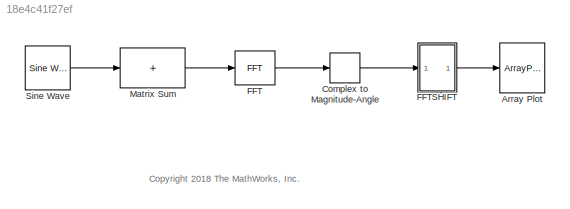
MODEL slx_18e4c41f27ef
KIND model
CONFIG AbsTol = auto
CONFIG EnableMultiTasking = on
CONFIG FixedStep = auto
CONFIG MaxStep = auto
CONFIG MinStep = auto
CONFIG PostLoadFcn = set_param(gcs,'SimulationCommand','Update')
CONFIG RelTol = 1e-3
CONFIG SampleTimeConstraint = Unconstrained
CONFIG SolverName = FixedStepDiscrete
CONFIG StartTime = 0.0
CONFIG StopTime = 20
BLOCK [ArrayPlot] Array Plot
  AxesScaling = Manual
  CustomXData = [-500+500/128:1000/128:500]
  DefaultConfigurationName = dsp.scopes.ArrayPlotBlockSpecification
  GraphicalSettings = {'Peaks':{'Enabled':'true','NumPeaks':'4','MinHeight':'-Infinity','MinDistance':'1','Threshold':'0'},'Style':{'AxesColor':[0,0,0],'LabelsColor':[0.686274509803922,0.686274509803922,0.686274509803922],'Marker':['none']}}
  PlotType = Line
  Ports = [1]
  SampleIncrement = 1000/128
  ScopeSpecificationString = dsp.scopes.ArrayPlotBlockSpecification('CurrentConfiguration', extmgr.ConfigurationSet(extmgr.Configuration('Core','General UI',true),extmgr.Configuration('Core','Source UI',true),extmgr.Configuration('Sources','WiredSimulink',true),extmgr.Configuration('Sources','Simulink',false),extmgr.Configuration('Sources','File',false),extmgr.Configuration('Sources','Workspace',false),extmgr.Configuration('S...<+2561ch>
  WindowPosition = [854 513 800 435]
  XOffset = -500
  YLimits = [-7.69577,71.9475]
BLOCK [ComplexToMagnitudeAngle] Complex to Magnitude-Angle
  Output = Magnitude
  Ports = [1, 1]
BLOCK [Reference] FFT  REF=dspxfrm3/FFT
  Ports = [1, 1]
  SourceBlock = dspxfrm3/FFT
  SourceProductBaseCode = DS
  SourceType = FFT
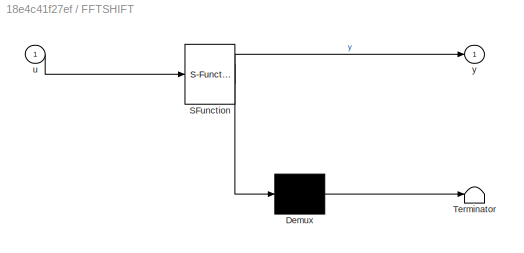
BLOCK [SubSystem] FFTSHIFT
  ErrorFcn = Stateflow.Translate.translate
  PermitHierarchicalResolution = ExplicitOnly
  Ports = [1, 1]
  RequestExecContextInheritance = off
  SFBlockType = MATLAB Function
  TreatAsAtomicUnit = on
BLOCK [Demux] FFTSHIFT/ Demux 
  Outputs = 1
  Ports = [1, 1]
BLOCK [S-Function] FFTSHIFT/ SFunction 
  EnableBusSupport = on
  FunctionName = sf_sfun
  PortCounts = [1 2]
  Ports = [1, 2]
  SFcnIsStateOwnerBlock = off
  SFunctionDeploymentMode = off
  Tag = Stateflow S-Function 2
BLOCK [Terminator] FFTSHIFT/ Terminator 
BLOCK [Inport] FFTSHIFT/u
BLOCK [Outport] FFTSHIFT/y
  VectorParamsAs1DForOutWhenUnconnected = off
BLOCK [Sum] Matrix Sum
  AccumDataTypeStr = Inherit: Same as first input
  CollapseDim = 2
  CollapseMode = Specified dimension
  IconShape = rectangular
  Inputs = +
  OutDataTypeStr = Inherit: Same as first input
  Ports = [1, 1]
BLOCK [Reference] Sine Wave  REF=dspsrcs4/Sine Wave
  Ports = [0, 1]
  SourceBlock = dspsrcs4/Sine Wave
  SourceProductBaseCode = DS
  SourceType = Sine Wave
ANNOTATION (root): <copyright redacted>
LINE Complex to Magnitude-Angle:1 -> FFTSHIFT:1
LINE FFT:1 -> Complex to Magnitude-Angle:1
LINE FFTSHIFT:1 -> Array Plot:1
LINE Matrix Sum:1 -> FFT:1
LINE Sine Wave:1 -> Matrix Sum:1
CHART FFTSHIFT states=1 transitions=1
  STATE_LABEL 'eML_blk_kernel()'
  STATE_LABEL 'SCRIPT:\nfunction y = fcn(u)\n\ny = fftshift(u);\n'
CHART  states=0 transitions=0
